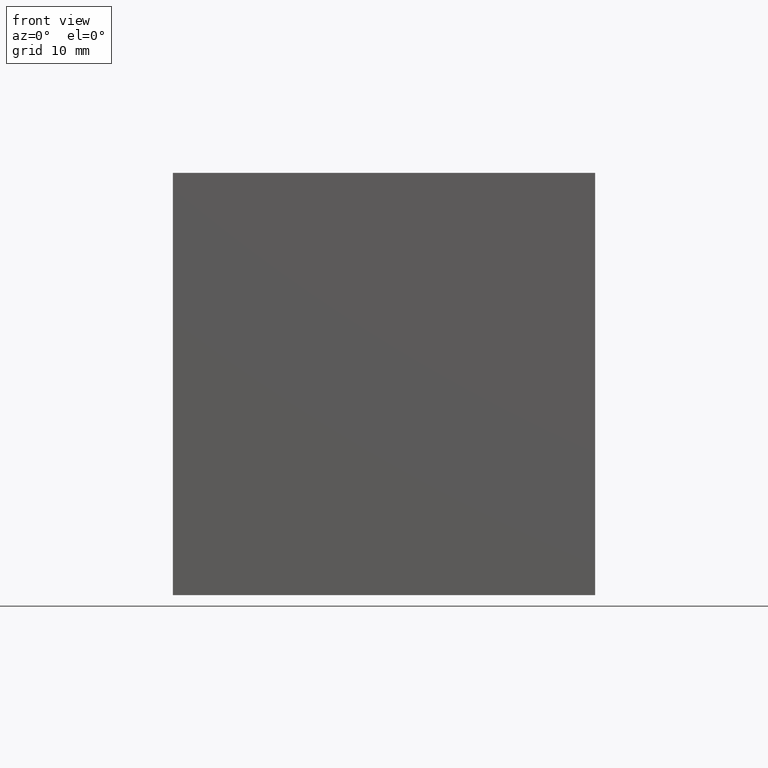
[diagram: clean part render]
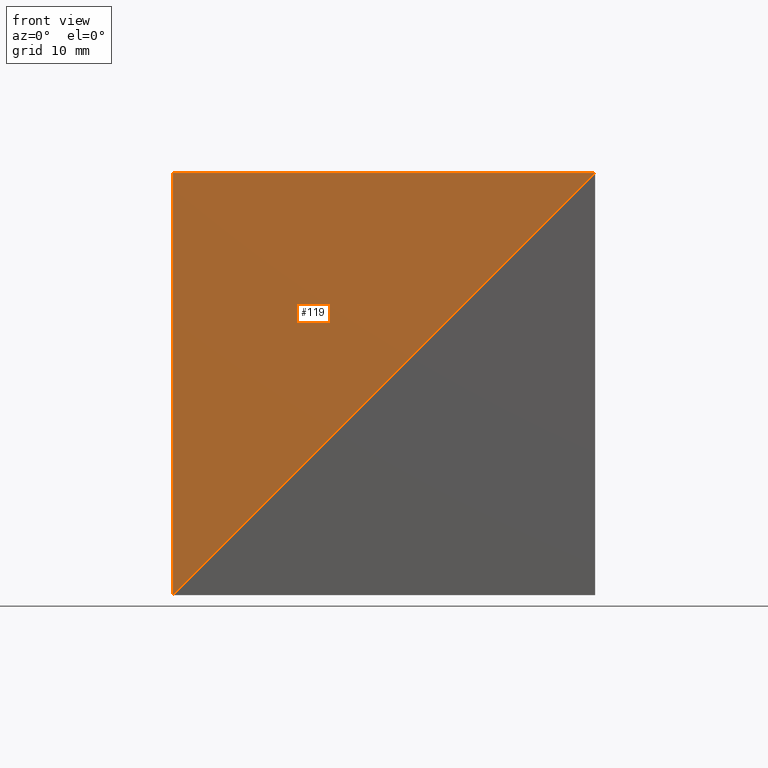
[diagram: same view with one face highlighted and labeled with its STEP entity id]
A machine part, front view. The second image highlights one B-rep face of the part: STEP entity #119.
In plain terms, the highlighted planar face has unit normal (0, 1, 0).
Its self-contained STEP definition (entity closure, byte-faithful):
#11 = EDGE_LOOP ( 'NONE', ( #84, #177, #115 ) ) ;
#12 = VECTOR ( 'NONE', #171, 1000.000000000000000 ) ;
#34 = CARTESIAN_POINT ( 'NONE',  ( -50.00000000000000000, 0.0000000000000000000, 0.0000000000000000000 ) ) ;
#35 = LINE ( 'NONE', #255, #126 ) ;
#40 = CARTESIAN_POINT ( 'NONE',  ( 0.0000000000000000000, 0.0000000000000000000, 0.0000000000000000000 ) ) ;
#48 = DIRECTION ( 'NONE',  ( -0.0000000000000000000, -0.0000000000000000000, -1.000000000000000000 ) ) ;
#66 = VERTEX_POINT ( 'NONE', #34 ) ;
#84 = ORIENTED_EDGE ( 'NONE', *, *, #151, .T. ) ;
#86 = DIRECTION ( 'NONE',  ( 0.0000000000000000000, 1.000000000000000000, 0.0000000000000000000 ) ) ;
#95 = FACE_OUTER_BOUND ( 'NONE', #11, .T. ) ;
#97 = EDGE_CURVE ( 'NONE', #192, #66, #136, .T. ) ;
#105 = AXIS2_PLACEMENT_3D ( 'NONE', #213, #86, #257 ) ;
#113 = CARTESIAN_POINT ( 'NONE',  ( 0.0000000000000000000, 0.0000000000000000000, 0.0000000000000000000 ) ) ;
#115 = ORIENTED_EDGE ( 'NONE', *, *, #218, .T. ) ;
#119 = ADVANCED_FACE ( 'NONE', ( #95 ), #211, .F. ) ;
#126 = VECTOR ( 'NONE', #48, 1000.000000000000000 ) ;
#136 = LINE ( 'NONE', #249, #12 ) ;
#150 = VECTOR ( 'NONE', #276, 1000.000000000000000 ) ;
#151 = EDGE_CURVE ( 'NONE', #175, #192, #225, .T. ) ;
#171 = DIRECTION ( 'NONE',  ( -1.000000000000000000, -0.0000000000000000000, -0.0000000000000000000 ) ) ;
#175 = VERTEX_POINT ( 'NONE', #182 ) ;
#177 = ORIENTED_EDGE ( 'NONE', *, *, #97, .T. ) ;
#182 = CARTESIAN_POINT ( 'NONE',  ( -50.00000000000000000, -0.0000000000000000000, -49.99999999999999300 ) ) ;
#192 = VERTEX_POINT ( 'NONE', #113 ) ;
#211 = PLANE ( 'NONE',  #105 ) ;
#213 = CARTESIAN_POINT ( 'NONE',  ( 0.0000000000000000000, 0.0000000000000000000, 0.0000000000000000000 ) ) ;
#218 = EDGE_CURVE ( 'NONE', #66, #175, #35, .T. ) ;
#225 = LINE ( 'NONE', #40, #150 ) ;
#249 = CARTESIAN_POINT ( 'NONE',  ( -50.00000000000000000, 0.0000000000000000000, 0.0000000000000000000 ) ) ;
#255 = CARTESIAN_POINT ( 'NONE',  ( -50.00000000000000000, -0.0000000000000000000, -49.99999999999999300 ) ) ;
#257 = DIRECTION ( 'NONE',  ( 0.0000000000000000000, -0.0000000000000000000, 1.000000000000000000 ) ) ;
#276 = DIRECTION ( 'NONE',  ( 0.7071067811865475700, 0.0000000000000000000, 0.7071067811865474600 ) ) ;